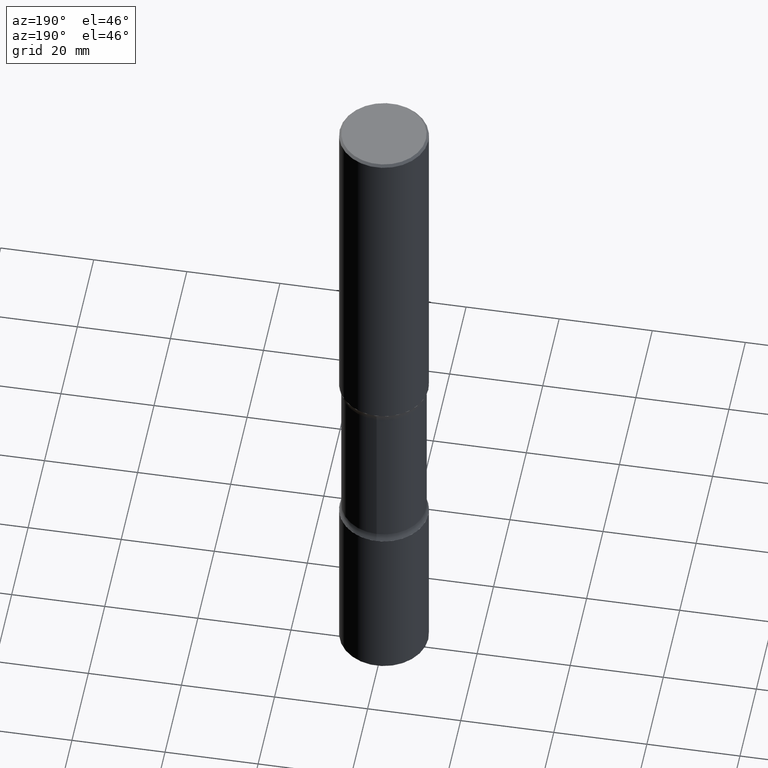
[diagram: clean part render]
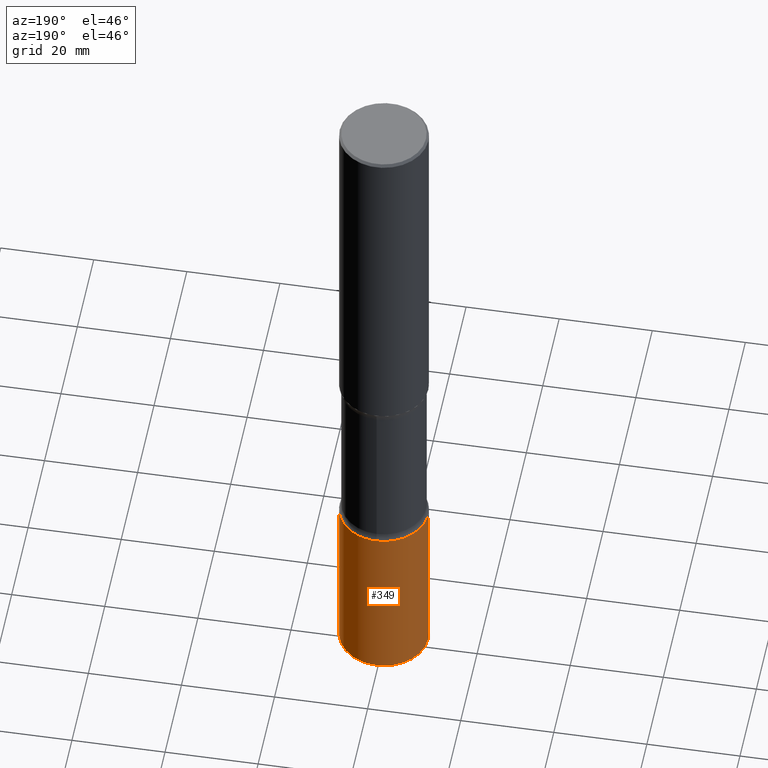
[diagram: same view with one face highlighted and labeled with its STEP entity id]
A machine part, auxiliary view. The second image highlights one B-rep face of the part: STEP entity #349.
In plain terms, the highlighted cylindrical surface (partial cylindrical patch) has radius 9.525 mm, axis along (-0, 0, 1).
Its self-contained STEP definition (entity closure, byte-faithful):
#11 = CARTESIAN_POINT ( 'NONE',  ( -0.3750000000000006661, -1.824943796057005747E-14, -5.989999999999999325 ) ) ;
#14 = CARTESIAN_POINT ( 'NONE',  ( 0.3750000000000003886, -1.833027702892650691E-14, -4.499999999999999112 ) ) ;
#22 = VERTEX_POINT ( 'NONE', #300 ) ;
#53 = EDGE_CURVE ( 'NONE', #332, #22, #197, .T. ) ;
#56 = DIRECTION ( 'NONE',  ( -2.445468806185136877E-29, 3.491481338843145188E-15, 1.000000000000000000 ) ) ;
#105 = VECTOR ( 'NONE', #510, 39.37007874015748143 ) ;
#111 = DIRECTION ( 'NONE',  ( 1.000000000000000000, -6.982962677686265922E-15, 4.876176775795935793E-29 ) ) ;
#120 = EDGE_LOOP ( 'NONE', ( #538, #134, #531, #280 ) ) ;
#126 = DIRECTION ( 'NONE',  ( -2.445468806185136597E-29, 3.491481338843145583E-15, 1.000000000000000000 ) ) ;
#134 = ORIENTED_EDGE ( 'NONE', *, *, #471, .T. ) ;
#164 = EDGE_CURVE ( 'NONE', #494, #196, #188, .T. ) ;
#170 = LINE ( 'NONE', #343, #105 ) ;
#188 = CIRCLE ( 'NONE', #502, 0.3750000000000002776 ) ;
#196 = VERTEX_POINT ( 'NONE', #11 ) ;
#197 = CIRCLE ( 'NONE', #244, 0.3750000000000003886 ) ;
#239 = DIRECTION ( 'NONE',  ( -2.445468806185136597E-29, 3.491481338843145583E-15, 1.000000000000000000 ) ) ;
#241 = CARTESIAN_POINT ( 'NONE',  ( 0.3750000000000003886, -2.618611004132352383E-15, 1.828566290923477884E-29 ) ) ;
#244 = AXIS2_PLACEMENT_3D ( 'NONE', #260, #126, #292 ) ;
#260 = CARTESIAN_POINT ( 'NONE',  ( 1.100460962783311244E-28, -1.571166602479415374E-14, -4.499999999999999112 ) ) ;
#280 = ORIENTED_EDGE ( 'NONE', *, *, #309, .F. ) ;
#292 = DIRECTION ( 'NONE',  ( 1.000000000000000000, -6.982962677686265922E-15, 0.000000000000000000 ) ) ;
#300 = CARTESIAN_POINT ( 'NONE',  ( -0.3750000000000003886, -1.564828436313191776E-14, -4.499999999999999112 ) ) ;
#309 = EDGE_CURVE ( 'NONE', #494, #332, #542, .T. ) ;
#318 = CARTESIAN_POINT ( 'NONE',  ( 0.000000000000000000, 0.000000000000000000, 0.000000000000000000 ) ) ;
#325 = CYLINDRICAL_SURFACE ( 'NONE', #458, 0.3750000000000003886 ) ;
#332 = VERTEX_POINT ( 'NONE', #14 ) ;
#343 = CARTESIAN_POINT ( 'NONE',  ( -0.3750000000000003886, 2.664535259100378458E-15, -1.844600658845591560E-29 ) ) ;
#349 = ADVANCED_FACE ( 'NONE', ( #366 ), #325, .T. ) ;
#354 = DIRECTION ( 'NONE',  ( -2.445468806185136597E-29, 3.491481338843145583E-15, 1.000000000000000000 ) ) ;
#366 = FACE_OUTER_BOUND ( 'NONE', #120, .T. ) ;
#457 = CARTESIAN_POINT ( 'NONE',  ( 0.3750000000000006661, -2.353258422380279265E-14, -5.989999999999999325 ) ) ;
#458 = AXIS2_PLACEMENT_3D ( 'NONE', #318, #239, #111 ) ;
#471 = EDGE_CURVE ( 'NONE', #196, #22, #170, .T. ) ;
#485 = DIRECTION ( 'NONE',  ( 1.000000000000000000, -6.982962677686267499E-15, 0.000000000000000000 ) ) ;
#494 = VERTEX_POINT ( 'NONE', #457 ) ;
#502 = AXIS2_PLACEMENT_3D ( 'NONE', #521, #354, #485 ) ;
#510 = DIRECTION ( 'NONE',  ( -2.445468806185136877E-29, 3.491481338843145188E-15, 1.000000000000000000 ) ) ;
#521 = CARTESIAN_POINT ( 'NONE',  ( 1.464835814904896579E-28, -2.091397321967043948E-14, -5.989999999999999325 ) ) ;
#531 = ORIENTED_EDGE ( 'NONE', *, *, #53, .F. ) ;
#538 = ORIENTED_EDGE ( 'NONE', *, *, #164, .T. ) ;
#542 = LINE ( 'NONE', #241, #560 ) ;
#560 = VECTOR ( 'NONE', #56, 39.37007874015748143 ) ;